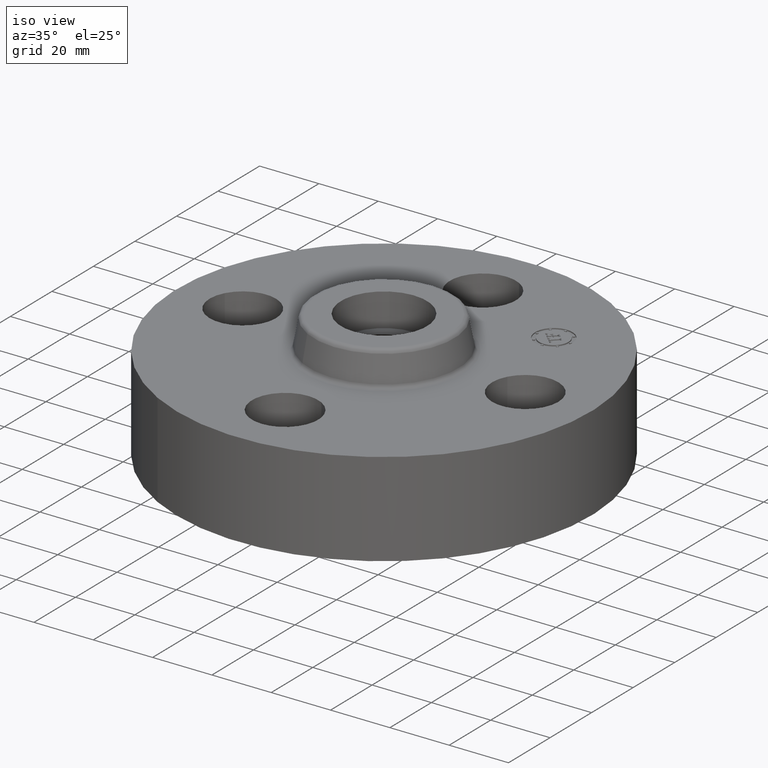
[diagram: clean part render]
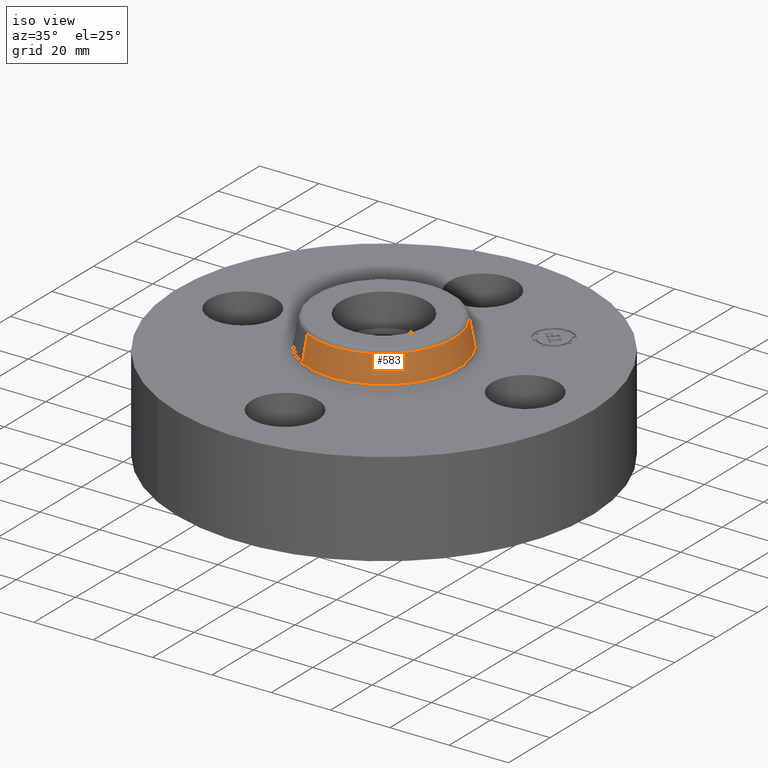
[diagram: same view with one face highlighted and labeled with its STEP entity id]
A machine part, iso view. The second image highlights one B-rep face of the part: STEP entity #583.
In plain terms, the highlighted conical surface has half-angle 10 deg.
Its self-contained STEP definition (entity closure, byte-faithful):
#519=AXIS2_PLACEMENT_3D('Circle Axis2P3D',#517,#518,$) ;
#556=AXIS2_PLACEMENT_3D('Cone Axis2P3D',#553,#554,#555) ;
#567=AXIS2_PLACEMENT_3D('Circle Axis2P3D',#565,#566,$) ;
#514=CARTESIAN_POINT('Vertex',(0.475234166919,0.869910307483,1.29958110935)) ;
#517=CARTESIAN_POINT('Axis2P3D Location',(0.,0.,1.29958110935)) ;
#521=CARTESIAN_POINT('Vertex',(-0.475234166919,-0.869910307483,1.29958110935)) ;
#553=CARTESIAN_POINT('Axis2P3D Location',(0.,0.,1.64041889067)) ;
#558=CARTESIAN_POINT('Line Origine',(0.460827693913,0.843539435532,1.47000000001)) ;
#562=CARTESIAN_POINT('Vertex',(0.446421220907,0.817168563582,1.64041889067)) ;
#565=CARTESIAN_POINT('Axis2P3D Location',(0.,0.,1.64041889067)) ;
#569=CARTESIAN_POINT('Vertex',(-0.446421220907,-0.817168563582,1.64041889067)) ;
#572=CARTESIAN_POINT('Line Origine',(-0.460827693913,-0.843539435532,1.47000000001)) ;
#518=DIRECTION('Axis2P3D Direction',(0.,0.,-0.0393700787402)) ;
#554=DIRECTION('Axis2P3D Direction',(0.,0.,-0.0393700787402)) ;
#555=DIRECTION('Axis2P3D XDirection',(-0.0188750212049,-0.0345504945626,0.)) ;
#559=DIRECTION('Vector Direction',(0.00327761303565,0.00599963041829,-0.03877195878)) ;
#566=DIRECTION('Axis2P3D Direction',(0.,0.,-0.0393700787402)) ;
#573=DIRECTION('Vector Direction',(-0.00327761303565,-0.00599963041829,-0.03877195878)) ;
#560=VECTOR('Line Direction',#559,0.0393700787402) ;
#574=VECTOR('Line Direction',#573,0.0393700787402) ;
#578=ORIENTED_EDGE('',*,*,#523,.F.) ;
#579=ORIENTED_EDGE('',*,*,#564,.T.) ;
#580=ORIENTED_EDGE('',*,*,#571,.T.) ;
#581=ORIENTED_EDGE('',*,*,#576,.F.) ;
#583=ADVANCED_FACE('PartBody',(#582),#557,.T.) ;
#520=CIRCLE('generated circle',#519,0.991257512694) ;
#568=CIRCLE('generated circle',#567,0.931158615802) ;
#557=CONICAL_SURFACE('Cone',#556,0.931158615802,0.174532925199) ;
#523=EDGE_CURVE('',#515,#522,#520,.T.) ;
#564=EDGE_CURVE('',#515,#563,#561,.F.) ;
#571=EDGE_CURVE('',#563,#570,#568,.T.) ;
#576=EDGE_CURVE('',#522,#570,#575,.F.) ;
#577=EDGE_LOOP('',(#578,#579,#580,#581)) ;
#582=FACE_OUTER_BOUND('',#577,.T.) ;
#561=LINE('Line',#558,#560) ;
#575=LINE('Line',#572,#574) ;
#515=VERTEX_POINT('',#514) ;
#522=VERTEX_POINT('',#521) ;
#563=VERTEX_POINT('',#562) ;
#570=VERTEX_POINT('',#569) ;